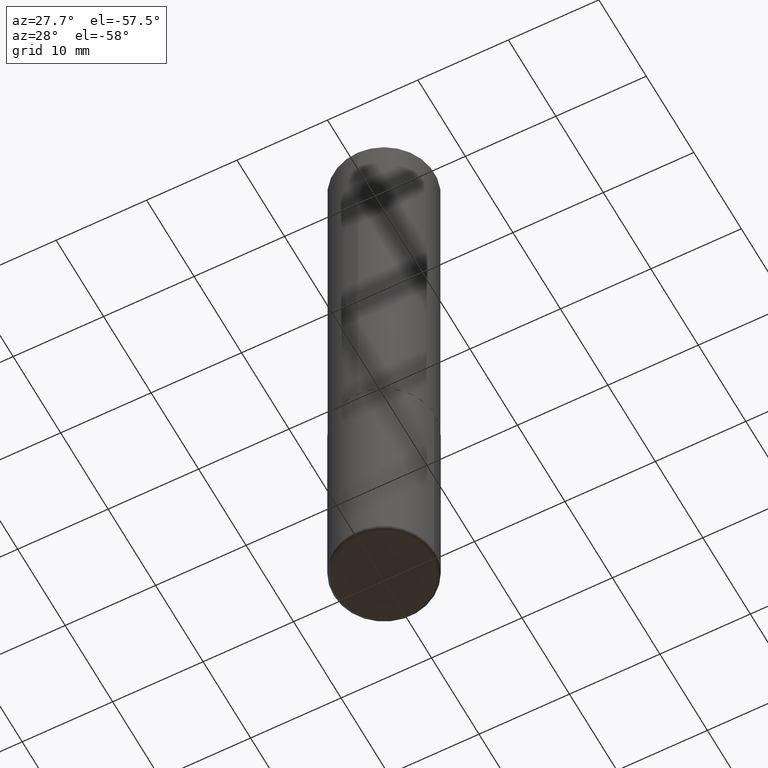
[diagram: clean part render]
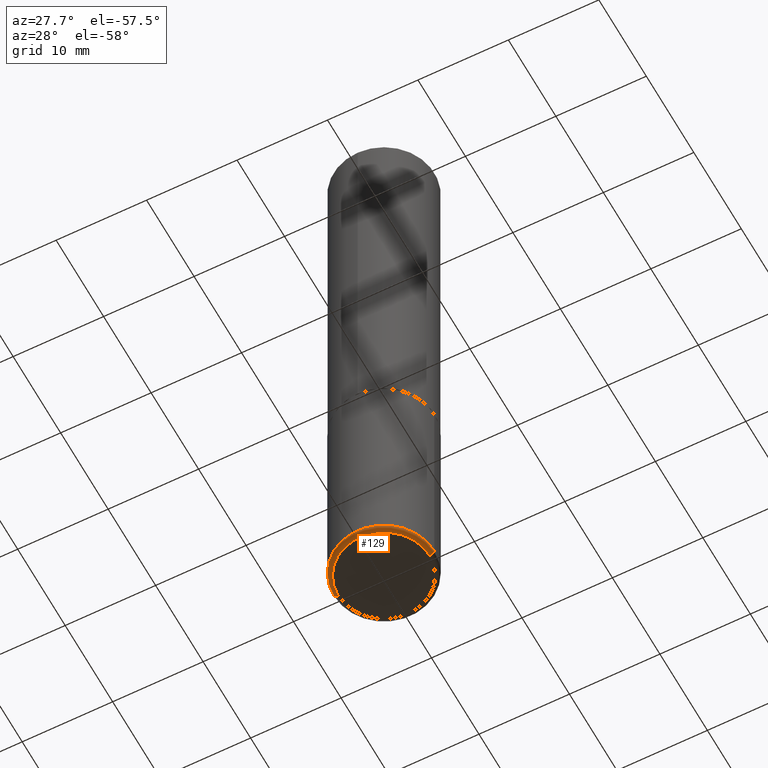
[diagram: same view with one face highlighted and labeled with its STEP entity id]
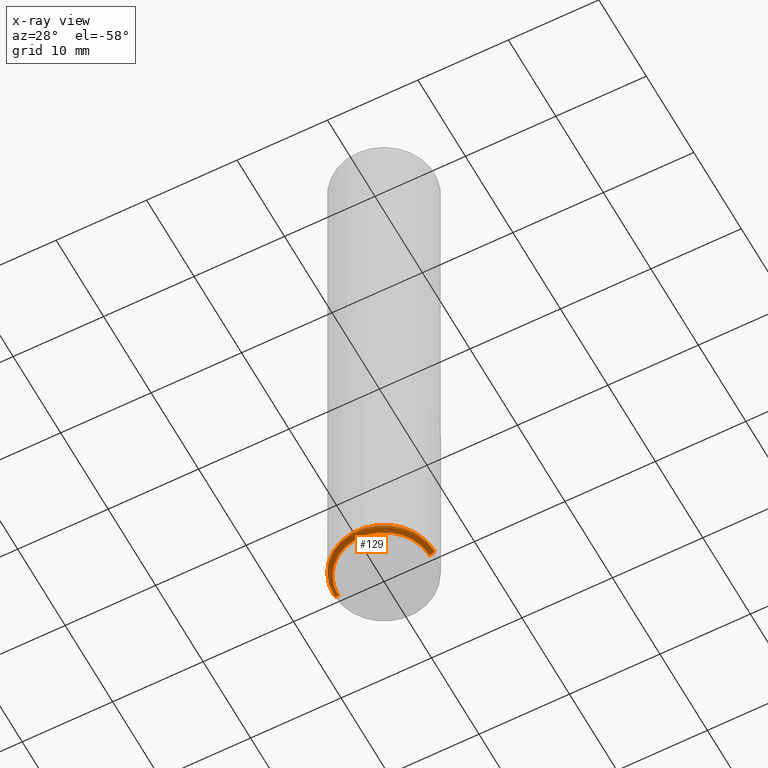
[diagram: x-ray of the same camera — body ghosted, the highlighted face saturated]
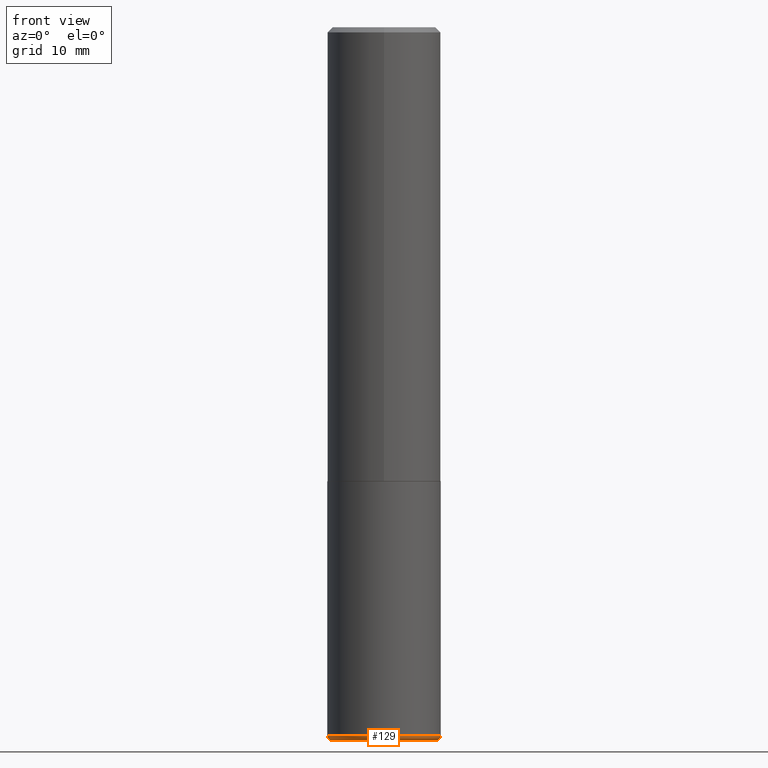
[diagram: same view with one face highlighted and labeled with its STEP entity id]
A machine part, auxiliary view. The second image highlights one B-rep face of the part: STEP entity #129.
The next image is the same camera in x-ray: the body ghosted, the highlighted face saturated — about 0% of this face is hidden behind the body in this view.
A second angle (front view) of the same face is appended — the face is thin or edge-on in the first view.
In plain terms, the highlighted toroidal blend (fillet) surface has major radius 5.0483 mm and minor (blend) radius 0.508 mm.
Its self-contained STEP definition (entity closure, byte-faithful):
#26 = CARTESIAN_POINT ( 'NONE',  ( 0.1987500000000000100, -1.091960788723193160E-14, -2.729999999999999982 ) ) ;
#28 = CIRCLE ( 'NONE', #151, 0.01999999999999988939 ) ;
#33 = DIRECTION ( 'NONE',  ( 1.000000000000000000, -6.982962677686265133E-15, 0.000000000000000000 ) ) ;
#36 = CARTESIAN_POINT ( 'NONE',  ( -0.1987500000000000100, -8.083400907531010713E-15, -2.750000000000000000 ) ) ;
#48 = EDGE_CURVE ( 'NONE', #109, #136, #28, .T. ) ;
#52 = ORIENTED_EDGE ( 'NONE', *, *, #277, .F. ) ;
#66 = DIRECTION ( 'NONE',  ( 7.105427357601001859E-15, 1.000000000000000000, -3.491481338843145583E-15 ) ) ;
#88 = CIRCLE ( 'NONE', #281, 0.2187500000000000000 ) ;
#98 = DIRECTION ( 'NONE',  ( -2.445468806185136597E-29, 3.491481338843145583E-15, 1.000000000000000000 ) ) ;
#109 = VERTEX_POINT ( 'NONE', #354 ) ;
#114 = VERTEX_POINT ( 'NONE', #36 ) ;
#118 = DIRECTION ( 'NONE',  ( 1.000000000000000000, -6.982962677686274599E-15, 0.000000000000000000 ) ) ;
#126 = CARTESIAN_POINT ( 'NONE',  ( 6.676129840885423672E-29, -9.531744055041786561E-15, -2.729999999999999982 ) ) ;
#129 = ADVANCED_FACE ( 'NONE', ( #131 ), #181, .T. ) ;
#131 = FACE_OUTER_BOUND ( 'NONE', #260, .T. ) ;
#136 = VERTEX_POINT ( 'NONE', #382 ) ;
#147 = EDGE_CURVE ( 'NONE', #114, #239, #410, .T. ) ;
#151 = AXIS2_PLACEMENT_3D ( 'NONE', #26, #372, #118 ) ;
#159 = CARTESIAN_POINT ( 'NONE',  ( 6.725039217009124520E-29, -9.601573681818649859E-15, -2.750000000000000000 ) ) ;
#178 = AXIS2_PLACEMENT_3D ( 'NONE', #159, #98, #33 ) ;
#181 = TOROIDAL_SURFACE ( 'NONE', #244, 0.1987500000000000100, 0.01999999999999988939 ) ;
#189 = CARTESIAN_POINT ( 'NONE',  ( -0.1987500000000000100, -8.119540367718587568E-15, -2.729999999999999982 ) ) ;
#190 = EDGE_CURVE ( 'NONE', #114, #109, #206, .T. ) ;
#206 = CIRCLE ( 'NONE', #178, 0.1987500000000000100 ) ;
#214 = DIRECTION ( 'NONE',  ( 1.000000000000000000, -6.982962677686266711E-15, 4.883557194083112901E-29 ) ) ;
#221 = CARTESIAN_POINT ( 'NONE',  ( -0.2187499999999999445, -7.977431820566568982E-15, -2.729999999999999982 ) ) ;
#223 = DIRECTION ( 'NONE',  ( -2.445468806185136597E-29, 3.491481338843145583E-15, 1.000000000000000000 ) ) ;
#239 = VERTEX_POINT ( 'NONE', #221 ) ;
#244 = AXIS2_PLACEMENT_3D ( 'NONE', #126, #223, #214 ) ;
#260 = EDGE_LOOP ( 'NONE', ( #341, #397, #370, #52 ) ) ;
#264 = AXIS2_PLACEMENT_3D ( 'NONE', #189, #66, #392 ) ;
#277 = EDGE_CURVE ( 'NONE', #239, #136, #88, .T. ) ;
#281 = AXIS2_PLACEMENT_3D ( 'NONE', #325, #329, #298 ) ;
#298 = DIRECTION ( 'NONE',  ( 1.000000000000000000, -6.982962677686262766E-15, 0.000000000000000000 ) ) ;
#325 = CARTESIAN_POINT ( 'NONE',  ( 6.676129840885423672E-29, -9.531744055041786561E-15, -2.729999999999999982 ) ) ;
#329 = DIRECTION ( 'NONE',  ( -2.445468806185136597E-29, 3.491481338843145583E-15, 1.000000000000000000 ) ) ;
#341 = ORIENTED_EDGE ( 'NONE', *, *, #147, .F. ) ;
#354 = CARTESIAN_POINT ( 'NONE',  ( 0.1987500000000000100, -1.098943751400879489E-14, -2.750000000000000000 ) ) ;
#370 = ORIENTED_EDGE ( 'NONE', *, *, #48, .T. ) ;
#372 = DIRECTION ( 'NONE',  ( -6.982962677686266711E-15, -1.000000000000000000, 3.491481338843145583E-15 ) ) ;
#382 = CARTESIAN_POINT ( 'NONE',  ( 0.2187499999999999445, -1.105926714078565662E-14, -2.729999999999999982 ) ) ;
#392 = DIRECTION ( 'NONE',  ( -1.000000000000000000, 7.105427357601014480E-15, 0.000000000000000000 ) ) ;
#397 = ORIENTED_EDGE ( 'NONE', *, *, #190, .T. ) ;
#410 = CIRCLE ( 'NONE', #264, 0.01999999999999988939 ) ;